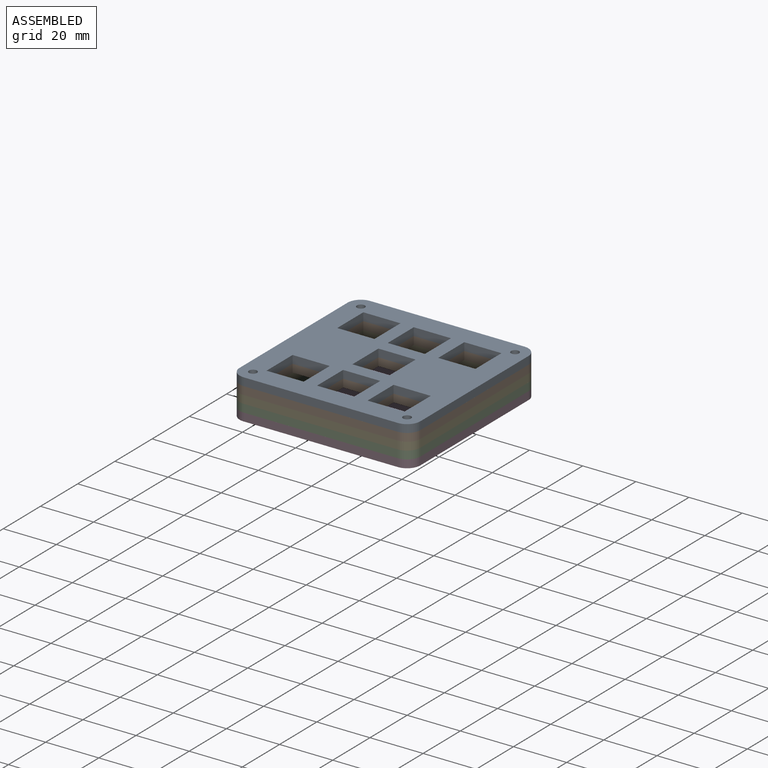
[diagram: assembled view]
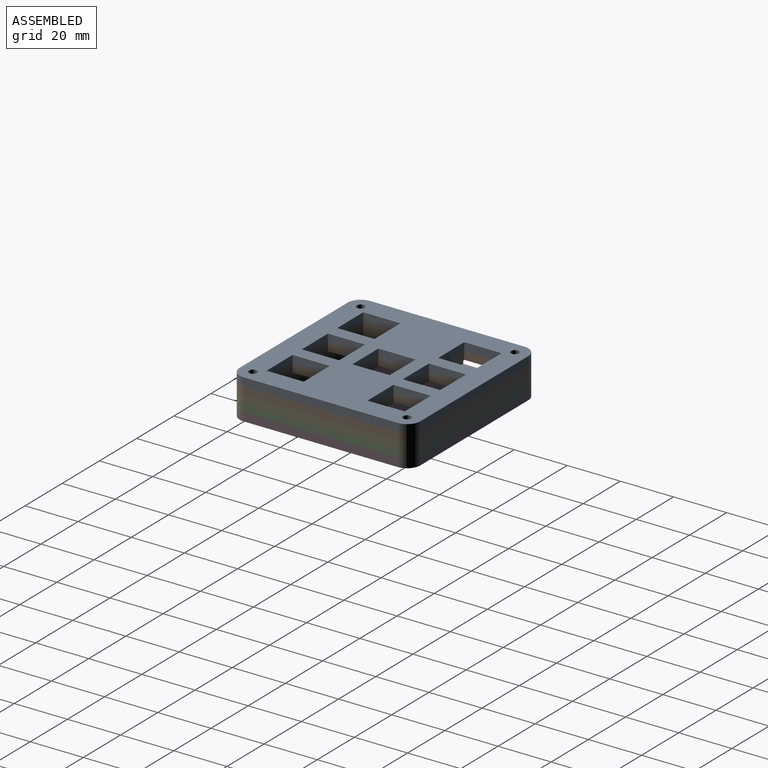
[diagram: assembled view, second angle]
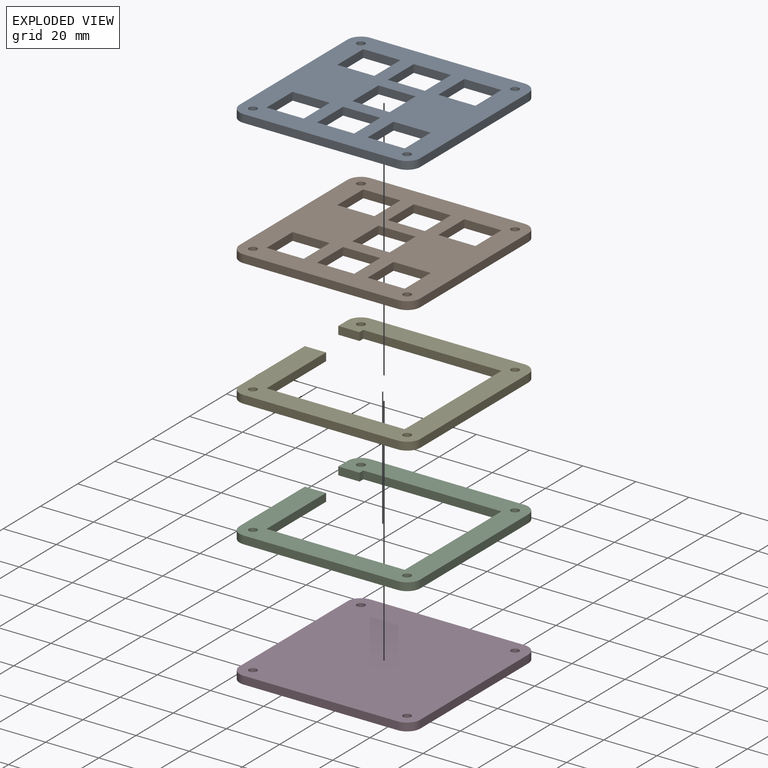
[diagram: exploded view]
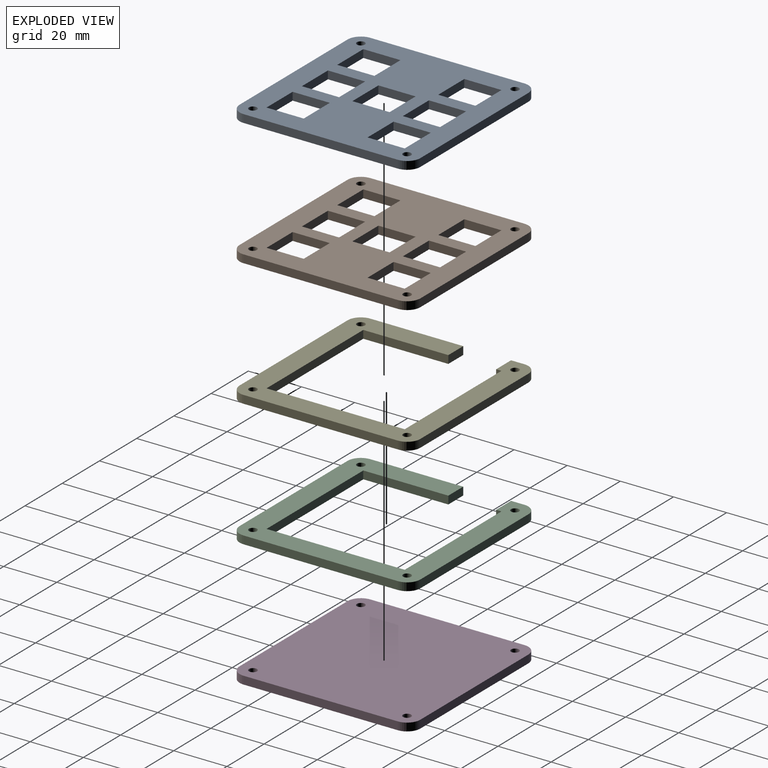
[diagram: exploded view, second angle]
ASSEMBLY  parts=5 mates=4
PART A: 42 faces, bbox 68x68x3 mm
  f0: plane 58x3mm, normal (1,0,0), area 174mm2, adj f1,f39,f40,f41
  f1: cylinder r=5mm len=5mm, axis (0,0,-1), area 23.6mm2, adj f0,f2,f40,f41
  f2: plane 58x3mm, normal (0,1,0), area 174mm2, adj f1,f3,f40,f41
  f3: cylinder r=5mm len=5mm, axis (0,0,-1), area 23.6mm2, adj f2,f4,f40,f41
  f4: plane 58x3mm, normal (-1,0,0), area 174mm2, adj f3,f5,f40,f41
  f5: cylinder r=5mm len=5mm, axis (0,0,-1), area 23.6mm2, adj f4,f6,f40,f41
  f6: plane 58x3mm, normal (0,-1,0), area 174mm2, adj f5,f39,f40,f41
  f7: plane 14x3mm, normal (-1,0,0), area 42mm2, adj f8,f32,f40,f41
  f8: plane 14x3mm, normal (0,1,0), area 42mm2, adj f7,f9,f40,f41
  f9: plane 14x3mm, normal (1,0,0), area 42mm2, adj f8,f32,f40,f41
  f10: plane 14x3mm, normal (-1,0,0), area 42mm2, adj f11,f33,f40,f41
  f11: plane 14x3mm, normal (0,1,0), area 42mm2, adj f10,f12,f40,f41
  f12: plane 14x3mm, normal (1,0,0), area 42mm2, adj f11,f33,f40,f41
  f13: plane 14x3mm, normal (-1,0,0), area 42mm2, adj f14,f34,f40,f41
  f14: plane 14x3mm, normal (0,1,0), area 42mm2, adj f13,f15,f40,f41
  f15: plane 14x3mm, normal (1,0,0), area 42mm2, adj f14,f34,f40,f41
  f16: plane 14x3mm, normal (-1,0,0), area 42mm2, adj f17,f35,f40,f41
  f17: plane 14x3mm, normal (0,1,0), area 42mm2, adj f16,f18,f40,f41
  f18: plane 14x3mm, normal (1,0,0), area 42mm2, adj f17,f35,f40,f41
  f19: plane 14x3mm, normal (-1,0,0), area 42mm2, adj f20,f36,f40,f41
  f20: plane 14x3mm, normal (0,1,0), area 42mm2, adj f19,f21,f40,f41
  f21: plane 14x3mm, normal (1,0,0), area 42mm2, adj f20,f36,f40,f41
  f22: plane 14x3mm, normal (-1,0,0), area 42mm2, adj f23,f37,f40,f41
  f23: plane 14x3mm, normal (0,1,0), area 42mm2, adj f22,f24,f40,f41
  f24: plane 14x3mm, normal (1,0,0), area 42mm2, adj f23,f37,f40,f41
  f25: plane 14x3mm, normal (-1,0,0), area 42mm2, adj f26,f38,f40,f41
  f26: plane 14x3mm, normal (0,1,0), area 42mm2, adj f25,f27,f40,f41
  f27: plane 14x3mm, normal (1,0,0), area 42mm2, adj f26,f38,f40,f41
  f28: cylinder r=1.5mm len=3mm, axis (0,0,-1), area 28.3mm2, adj f40,f41
  f29: cylinder r=1.5mm len=3mm, axis (0,0,-1), area 28.3mm2, adj f40,f41
  f30: cylinder r=1.5mm len=3mm, axis (0,0,-1), area 28.3mm2, adj f40,f41
  f31: cylinder r=1.5mm len=3mm, axis (0,0,-1), area 28.3mm2, adj f40,f41
  f32: plane 14x3mm, normal (0,-1,0), area 42mm2, adj f7,f9,f40,f41
  f33: plane 14x3mm, normal (0,-1,0), area 42mm2, adj f10,f12,f40,f41
  f34: plane 14x3mm, normal (0,-1,0), area 42mm2, adj f13,f15,f40,f41
  f35: plane 14x3mm, normal (0,-1,0), area 42mm2, adj f16,f18,f40,f41
  f36: plane 14x3mm, normal (0,-1,0), area 42mm2, adj f19,f21,f40,f41
  f37: plane 14x3mm, normal (0,-1,0), area 42mm2, adj f22,f24,f40,f41
  f38: plane 14x3mm, normal (0,-1,0), area 42mm2, adj f25,f27,f40,f41
  f39: cylinder r=5mm len=5mm, axis (0,0,-1), area 23.6mm2, adj f0,f6,f40,f41
  f40: plane 68x68mm, normal (0,0,1), area 3202.3mm2, adj f0,f1,f2,f3,f4,f5,f6,f7
  f41: plane 68x68mm, normal (0,0,-1), area 3202.3mm2, adj f0,f1,f2,f3,f4,f5,f6,f7
PART B: same geometry as A
PART C: 22 faces, bbox 68x68x3 mm
  f0: plane 8x3mm, normal (0,1,0), area 24mm2, adj f1,f19,f20,f21
  f1: plane 35x3mm, normal (-1,0,0), area 105mm2, adj f0,f2,f20,f21
  f2: cylinder r=5mm len=5mm, axis (0,0,-1), area 23.6mm2, adj f1,f3,f20,f21
  f3: plane 58x3mm, normal (0,-1,0), area 174mm2, adj f2,f4,f20,f21
  f4: cylinder r=5mm len=5mm, axis (0,0,-1), area 23.6mm2, adj f3,f5,f20,f21
  f5: plane 58x3mm, normal (1,0,0), area 174mm2, adj f4,f6,f20,f21
  f6: cylinder r=5mm len=5mm, axis (0,0,-1), area 23.6mm2, adj f5,f7,f20,f21
  f7: plane 58x3mm, normal (0,1,0), area 174mm2, adj f6,f8,f20,f21
  f8: cylinder r=5mm len=5mm, axis (0,0,-1), area 23.6mm2, adj f7,f9,f20,f21
  f9: plane 5x3mm, normal (-1,0,0), area 15mm2, adj f8,f10,f20,f21
  f10: plane 8x3mm, normal (0,-1,0), area 24mm2, adj f9,f11,f20,f21
  f11: plane 3x2mm, normal (1,0,0), area 6mm2, adj f10,f12,f20,f21
  f12: plane 52x3mm, normal (0,-1,0), area 156mm2, adj f11,f13,f20,f21
  f13: plane 52x3mm, normal (-1,0,0), area 156mm2, adj f12,f14,f20,f21
  f14: plane 52x3mm, normal (0,1,0), area 156mm2, adj f13,f19,f20,f21
  f15: cylinder r=1.5mm len=3mm, axis (0,0,-1), area 28.3mm2, adj f20,f21
  f16: cylinder r=1.5mm len=3mm, axis (0,0,-1), area 28.3mm2, adj f20,f21
  f17: cylinder r=1.5mm len=3mm, axis (0,0,-1), area 28.3mm2, adj f20,f21
  f18: cylinder r=1.5mm len=3mm, axis (0,0,-1), area 28.3mm2, adj f20,f21
  f19: plane 32x3mm, normal (1,0,0), area 96mm2, adj f0,f14,f20,f21
  f20: plane 68x68mm, normal (0,0,1), area 1726.3mm2, adj f0,f1,f2,f3,f4,f5,f6,f7
  f21: plane 68x68mm, normal (0,0,-1), area 1726.3mm2, adj f0,f1,f2,f3,f4,f5,f6,f7
PART D: 42 faces, bbox 68x68x3 mm
  f0: plane 68x68mm, normal (0,0,-1), area 4497.8mm2, adj f1,f2,f3,f4,f5,f6,f7,f11
  f1: plane 58x3mm, normal (1,0,0), area 174mm2, adj f0,f2,f11,f13
  f2: cylinder r=5mm len=5mm, axis (0,0,-1), area 23.6mm2, adj f0,f1,f3,f13
  f3: plane 58x3mm, normal (0,1,0), area 174mm2, adj f0,f2,f4,f13
  f4: cylinder r=5mm len=5mm, axis (0,0,-1), area 23.6mm2, adj f0,f3,f5,f13
  f5: plane 58x3mm, normal (-1,0,0), area 174mm2, adj f0,f4,f6,f13
  f6: cylinder r=5mm len=5mm, axis (0,0,-1), area 23.6mm2, adj f0,f5,f7,f13
  f7: plane 58x3mm, normal (0,-1,0), area 174mm2, adj f0,f6,f11,f13
  f8: cylinder r=1.5mm len=3mm, axis (0,0,-1), area 18.8mm2, adj f13,f41
  f9: cylinder r=1.5mm len=3mm, axis (0,0,-1), area 18.8mm2, adj f13,f27
  f10: cylinder r=1.5mm len=3mm, axis (0,0,-1), area 18.8mm2, adj f13,f34
  f11: cylinder r=5mm len=5mm, axis (0,0,-1), area 23.6mm2, adj f0,f1,f7,f13
  f12: cylinder r=1.5mm len=3mm, axis (0,0,-1), area 18.8mm2, adj f13,f20
  f13: plane 68x68mm, normal (0,0,1), area 4574.3mm2, adj f1,f2,f3,f4,f5,f6,f7,f8
  f14: plane 2.75x1.59mm, normal (-0.87,-0.5,0), area 3.2mm2, adj f0,f15,f19,f20
  f15: plane 3.18x1mm, normal (0,-1,0), area 3.2mm2, adj f0,f14,f16,f20
  f16: plane 2.75x1.59mm, normal (0.87,-0.5,0), area 3.2mm2, adj f0,f15,f17,f20
  f17: plane 2.75x1.59mm, normal (0.87,0.5,0), area 3.2mm2, adj f0,f16,f18,f20
  f18: plane 3.18x1mm, normal (0,1,0), area 3.2mm2, adj f0,f17,f19,f20
  f19: plane 2.75x1.59mm, normal (-0.87,0.5,0), area 3.2mm2, adj f0,f14,f18,f20
  f20: plane 6.35x5.5mm, normal (0,0,-1), area 19.1mm2, adj f12,f14,f15,f16,f17,f18,f19
  f21: plane 2.75x1.59mm, normal (-0.87,0.5,0), area 3.2mm2, adj f0,f22,f26,f27
  f22: plane 2.75x1.59mm, normal (-0.87,-0.5,0), area 3.2mm2, adj f0,f21,f23,f27
  f23: plane 3.18x1mm, normal (0,-1,0), area 3.2mm2, adj f0,f22,f24,f27
  f24: plane 2.75x1.59mm, normal (0.87,-0.5,0), area 3.2mm2, adj f0,f23,f25,f27
  f25: plane 2.75x1.59mm, normal (0.87,0.5,0), area 3.2mm2, adj f0,f24,f26,f27
  f26: plane 3.18x1mm, normal (0,1,0), area 3.2mm2, adj f0,f21,f25,f27
  f27: plane 6.35x5.5mm, normal (0,0,-1), area 19.1mm2, adj f9,f21,f22,f23,f24,f25,f26
  f28: plane 2.75x1.59mm, normal (0.87,0.5,0), area 3.2mm2, adj f0,f29,f33,f34
  f29: plane 3.18x1mm, normal (0,1,0), area 3.2mm2, adj f0,f28,f30,f34
  f30: plane 2.75x1.59mm, normal (-0.87,0.5,0), area 3.2mm2, adj f0,f29,f31,f34
  f31: plane 2.75x1.59mm, normal (-0.87,-0.5,0), area 3.2mm2, adj f0,f30,f32,f34
  f32: plane 3.18x1mm, normal (0,-1,0), area 3.2mm2, adj f0,f31,f33,f34
  f33: plane 2.75x1.59mm, normal (0.87,-0.5,0), area 3.2mm2, adj f0,f28,f32,f34
  f34: plane 6.35x5.5mm, normal (0,0,-1), area 19.1mm2, adj f10,f28,f29,f30,f31,f32,f33
  f35: plane 2.75x1.59mm, normal (-0.87,-0.5,0), area 3.2mm2, adj f0,f36,f40,f41
  f36: plane 3.18x1mm, normal (0,-1,0), area 3.2mm2, adj f0,f35,f37,f41
  f37: plane 2.75x1.59mm, normal (0.87,-0.5,0), area 3.2mm2, adj f0,f36,f38,f41
  f38: plane 2.75x1.59mm, normal (0.87,0.5,0), area 3.2mm2, adj f0,f37,f39,f41
  f39: plane 3.18x1mm, normal (0,1,0), area 3.2mm2, adj f0,f38,f40,f41
  f40: plane 2.75x1.59mm, normal (-0.87,0.5,0), area 3.2mm2, adj f0,f35,f39,f41
  f41: plane 6.35x5.5mm, normal (0,0,-1), area 19.1mm2, adj f8,f35,f36,f37,f38,f39,f40
PART E: same geometry as C
PLACE A t=(17.71,-38.18,26.5)mm
PLACE B t=(17.71,-38.18,23.5)mm
PLACE C t=(2.71,-53.18,17.5)mm
PLACE D t=(2.71,-53.18,14.5)mm
PLACE E t=(2.71,-53.18,20.5)mm
MATE fastened E.f2 <-> C.f2  axis (0,0,-1) through (7.71,-48.18,20.5)mm
MATE fastened A.f5 <-> B.f5  axis (0,0,-1) through (7.71,-48.18,26.5)mm
MATE fastened D.f6 <-> C.f2  axis (0,0,1) through (7.71,-48.18,17.5)mm
MATE fastened B.f5 <-> E.f2  axis (0,0,-1) through (7.71,-48.18,23.5)mm
